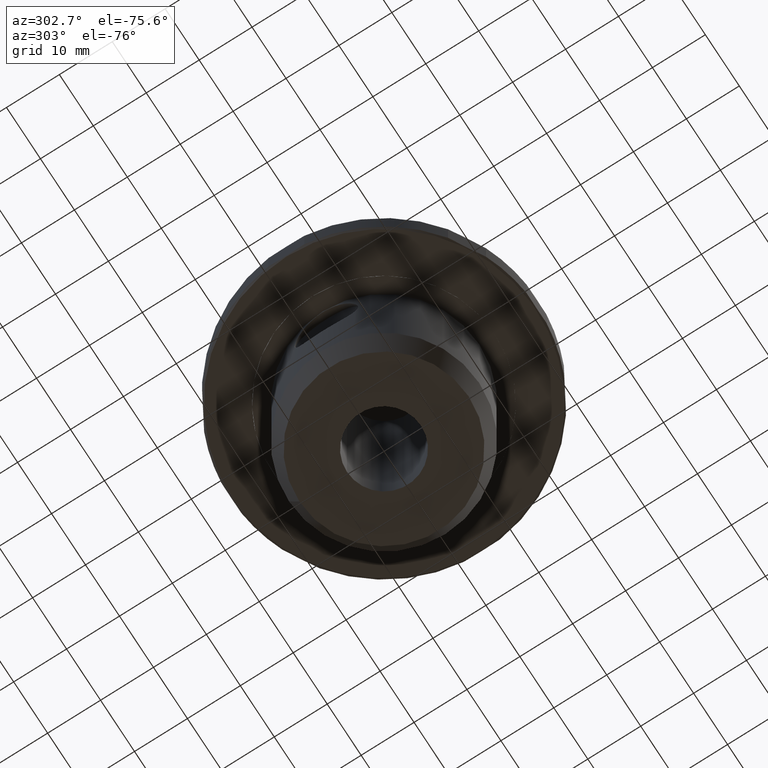
[diagram: clean part render]
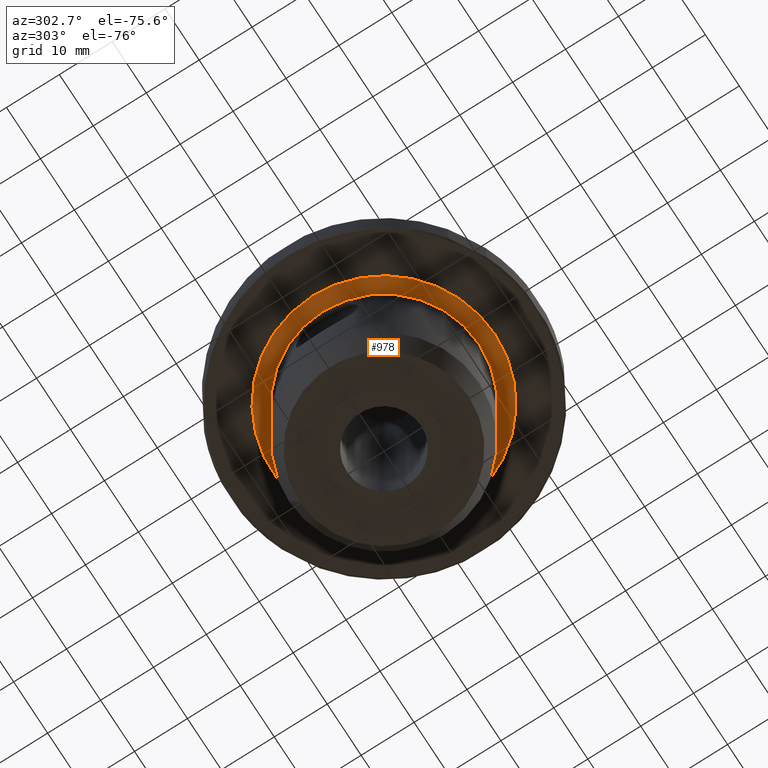
[diagram: same view with one face highlighted and labeled with its STEP entity id]
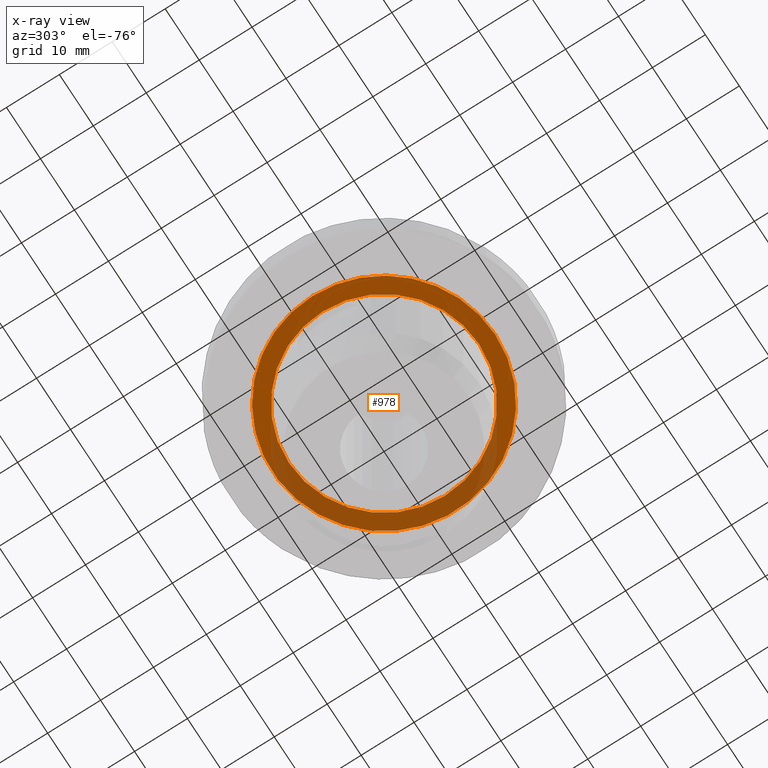
[diagram: x-ray of the same camera — body ghosted, the highlighted face saturated]
A machine part, auxiliary view. The second image highlights one B-rep face of the part: STEP entity #978.
The next image is the same camera in x-ray: the body ghosted, the highlighted face saturated — about 37% of this face is hidden behind the body in this view.
In plain terms, the highlighted planar face has unit normal (0, -0, -1).
Its self-contained STEP definition (entity closure, byte-faithful):
#90=PLANE('',#1113);
#116=CIRCLE('',#999,18.);
#167=CIRCLE('',#1108,21.);
#416=ORIENTED_EDGE('',*,*,#428,.F.);
#417=ORIENTED_EDGE('',*,*,#548,.T.);
#428=EDGE_CURVE('',#555,#555,#116,.T.);
#548=EDGE_CURVE('',#641,#641,#167,.T.);
#555=VERTEX_POINT('',#1426);
#641=VERTEX_POINT('',#1834);
#778=EDGE_LOOP('',(#416));
#779=EDGE_LOOP('',(#417));
#878=FACE_BOUND('',#778,.T.);
#879=FACE_BOUND('',#779,.T.);
#978=ADVANCED_FACE('',(#878,#879),#90,.T.);
#999=AXIS2_PLACEMENT_3D('',#1425,#1127,#1128);
#1108=AXIS2_PLACEMENT_3D('',#1833,#1373,#1374);
#1113=AXIS2_PLACEMENT_3D('',#1841,#1383,#1384);
#1127=DIRECTION('',(1.27319154200133E-16,-7.79579225983867E-33,-1.));
#1128=DIRECTION('',(-1.,0.,-1.27319154200133E-16));
#1373=DIRECTION('',(1.27319154200133E-16,-7.79579225983867E-33,-1.));
#1374=DIRECTION('',(-1.,0.,-1.27319154200133E-16));
#1383=DIRECTION('',(1.27319154200133E-16,-7.79579225983867E-33,-1.));
#1384=DIRECTION('',(-1.,6.12303176911189E-17,-1.27319154200133E-16));
#1425=CARTESIAN_POINT('',(0.,0.,-7.));
#1426=CARTESIAN_POINT('',(-18.,0.,-7.));
#1833=CARTESIAN_POINT('',(6.93941219289284E-15,-4.24902413160453E-31,-7.));
#1834=CARTESIAN_POINT('',(-21.,-4.24902413160453E-31,-7.));
#1841=CARTESIAN_POINT('',(-21.5,1.31645183035906E-15,-7.));